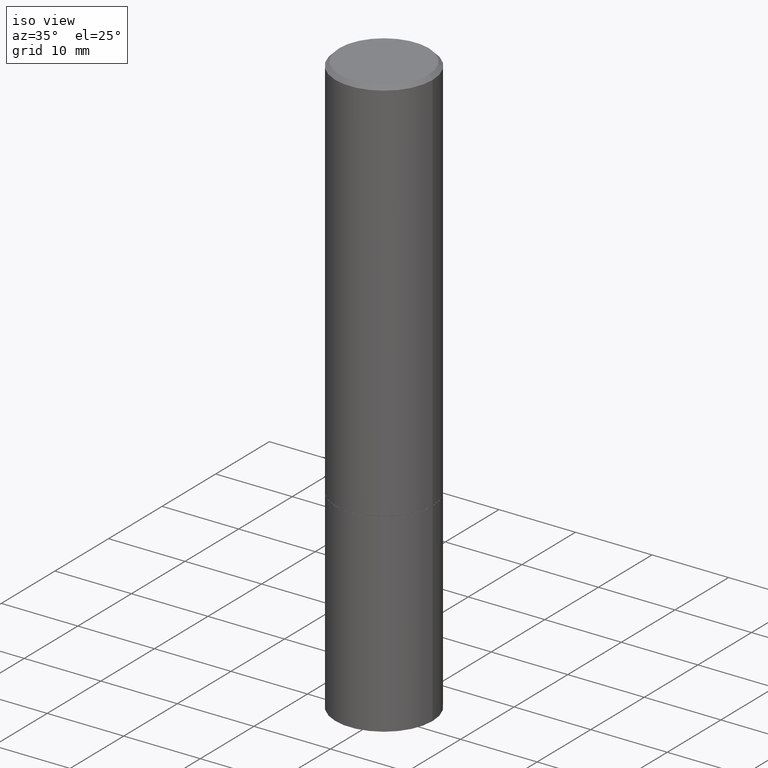
[diagram: clean part render]
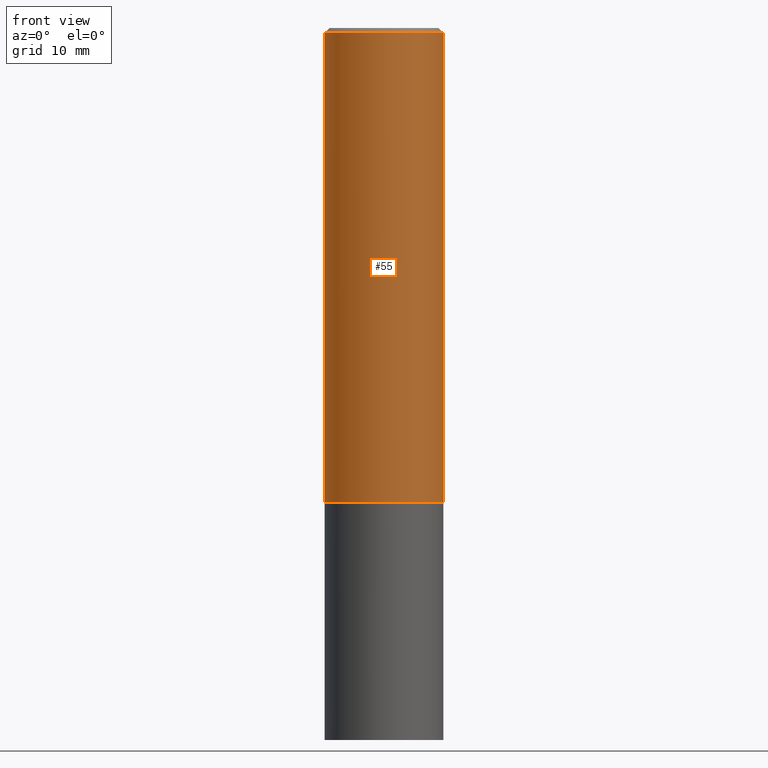
[diagram: tour spotlight — one face highlighted and labeled with its STEP entity id]
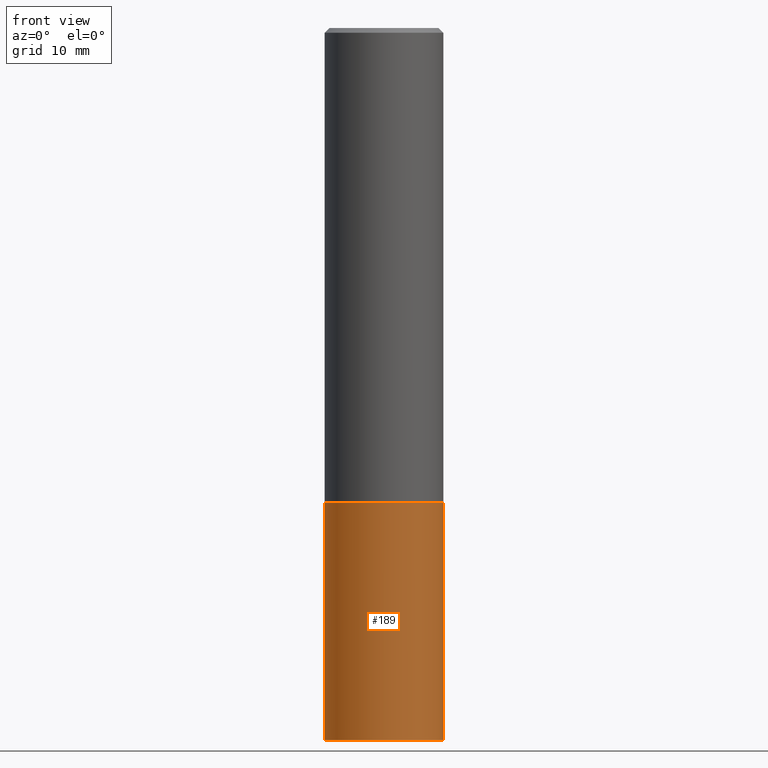
[diagram: tour spotlight — one face highlighted and labeled with its STEP entity id]
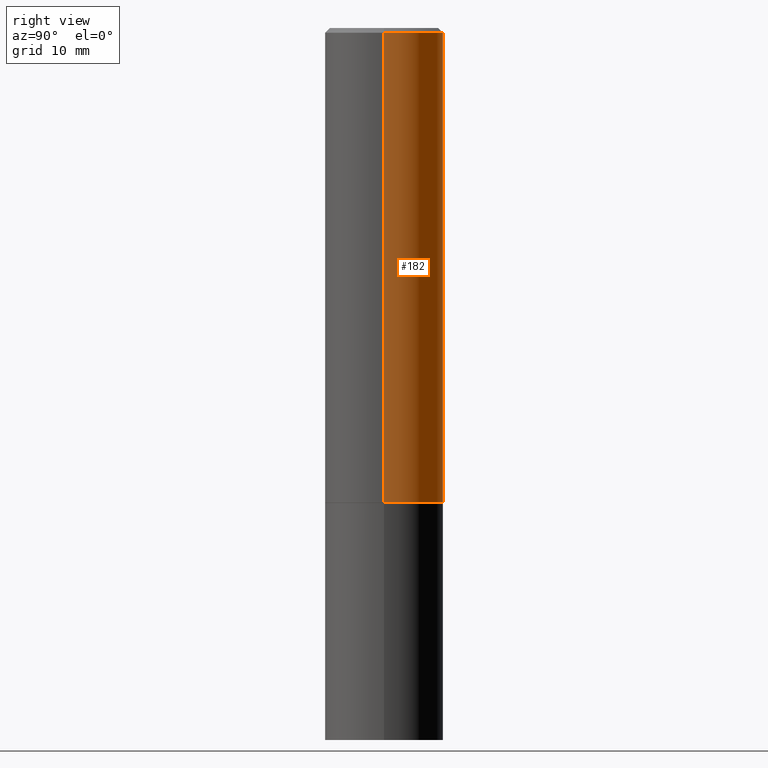
[diagram: tour spotlight — one face highlighted and labeled with its STEP entity id]
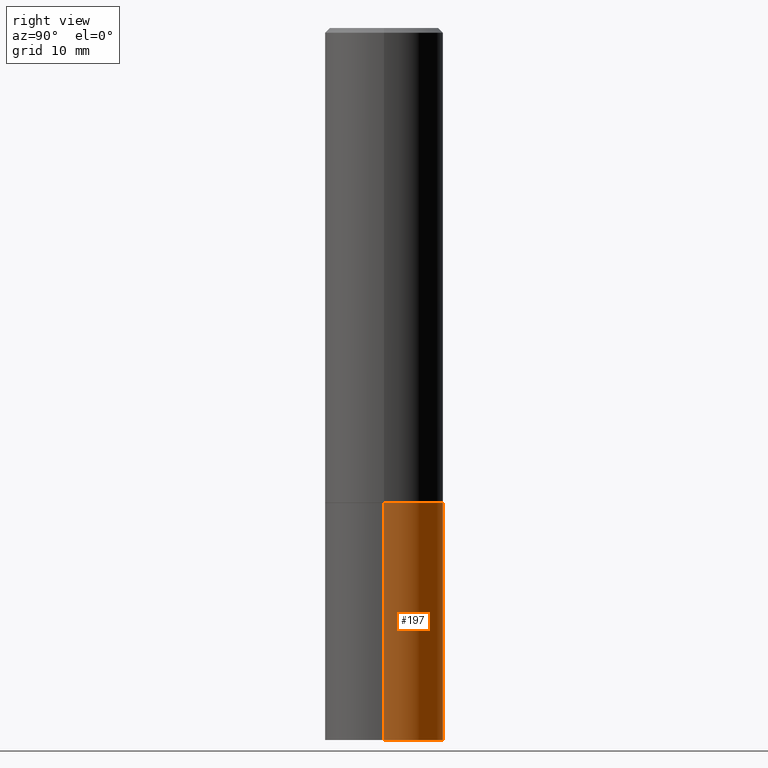
[diagram: tour spotlight — one face highlighted and labeled with its STEP entity id]
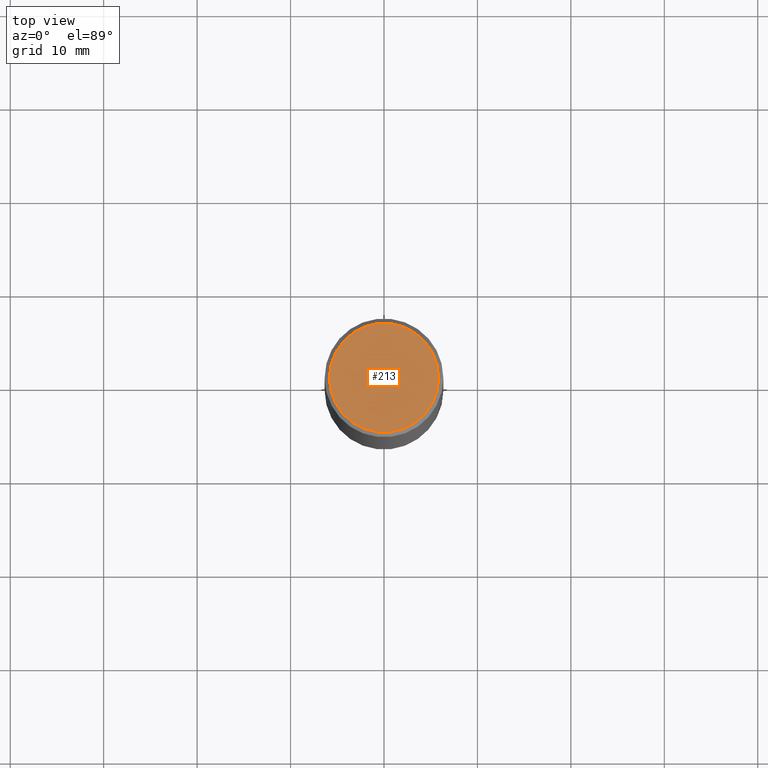
[diagram: tour spotlight — one face highlighted and labeled with its STEP entity id]
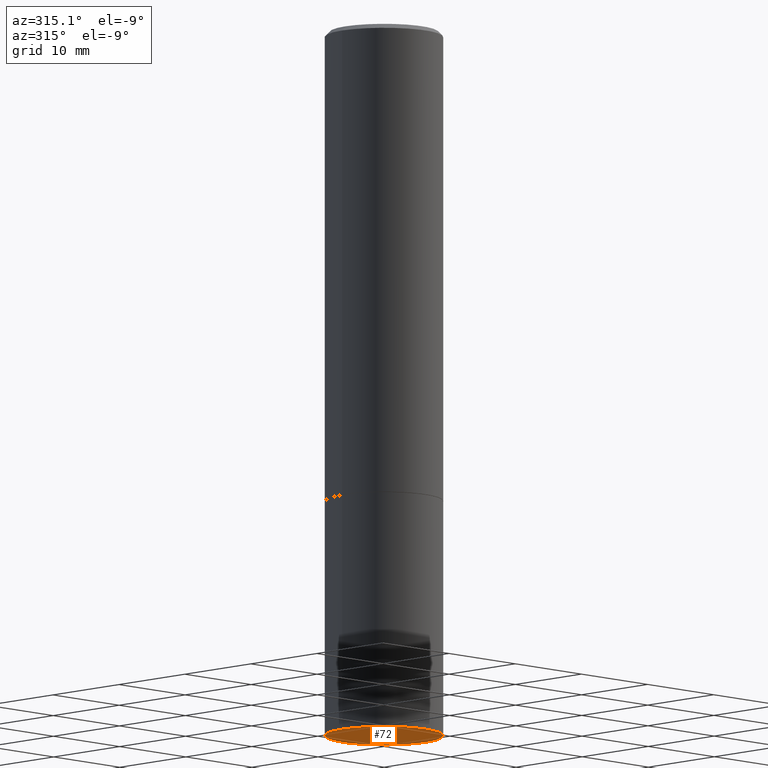
[diagram: tour spotlight — one face highlighted and labeled with its STEP entity id]
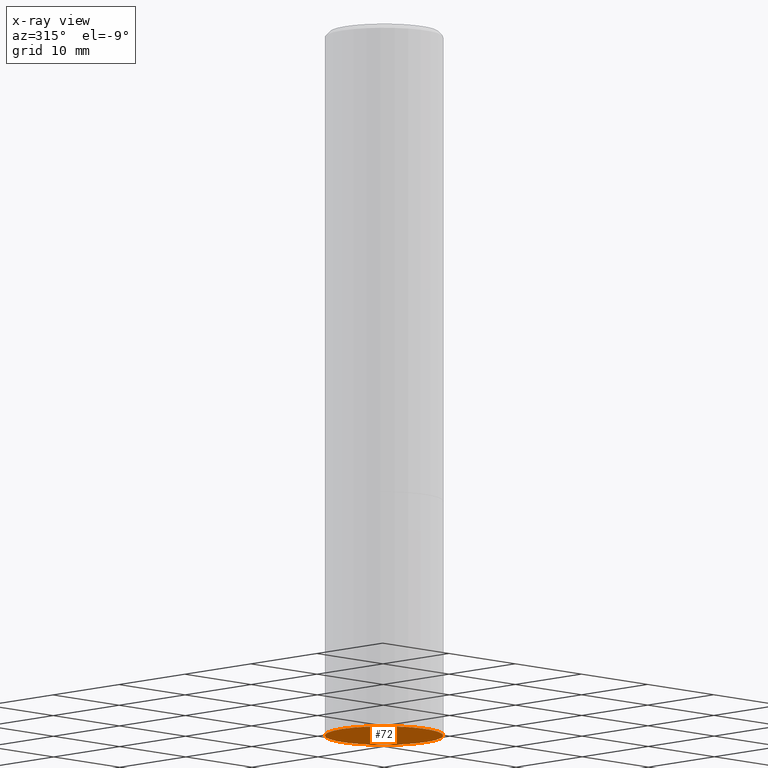
[diagram: x-ray of the same camera — body ghosted, this tour face saturated]
A machine part: a face-by-face anatomy tour. The part has 12 B-rep faces; the first image is the clean iso view, then the 6 largest visible faces are spotlighted one at a time (largest first), each with its STEP entity span.

Face 1 — front view, entity #55. In plain terms, the highlighted cylindrical surface (partial cylindrical patch) has radius 6.35 mm, axis along (-0, 0, 1).
Definition (entity closure, byte-faithful):
#4 = CARTESIAN_POINT ( 'NONE',  ( 0.2500000000000000000, -8.725211865769015625E-15, -1.999000000000000110 ) ) ;
#24 = DIRECTION ( 'NONE',  ( -2.445468806185136597E-29, 3.491481338843145583E-15, 1.000000000000000000 ) ) ;
#39 = CIRCLE ( 'NONE', #323, 0.2500000000000000000 ) ;
#45 = ORIENTED_EDGE ( 'NONE', *, *, #111, .F. ) ;
#55 = ADVANCED_FACE ( 'NONE', ( #79 ), #113, .T. ) ;
#79 = FACE_OUTER_BOUND ( 'NONE', #351, .T. ) ;
#80 = CIRCLE ( 'NONE', #236, 0.2499999999999996947 ) ;
#84 = CARTESIAN_POINT ( 'NONE',  ( 4.890937612370297681E-31, -6.982962677686324889E-17, -0.02000000000000009756 ) ) ;
#104 = ORIENTED_EDGE ( 'NONE', *, *, #121, .T. ) ;
#106 = ORIENTED_EDGE ( 'NONE', *, *, #161, .F. ) ;
#110 = DIRECTION ( 'NONE',  ( -2.445468806185136597E-29, 3.491481338843145583E-15, 1.000000000000000000 ) ) ;
#111 = EDGE_CURVE ( 'NONE', #160, #219, #227, .T. ) ;
#113 = CYLINDRICAL_SURFACE ( 'NONE', #155, 0.2499999999999998612 ) ;
#121 = EDGE_CURVE ( 'NONE', #160, #239, #39, .T. ) ;
#139 = DIRECTION ( 'NONE',  ( -2.445468806185136597E-29, 3.491481338843145583E-15, 1.000000000000000000 ) ) ;
#142 = CARTESIAN_POINT ( 'NONE',  ( -0.2499999999999998612, 1.776356839400249479E-15, -1.229733772563725745E-29 ) ) ;
#143 = CARTESIAN_POINT ( 'NONE',  ( 4.888492143564088712E-29, -6.979471196347448158E-15, -1.999000000000000110 ) ) ;
#144 = CARTESIAN_POINT ( 'NONE',  ( 0.000000000000000000, 0.000000000000000000, 0.000000000000000000 ) ) ;
#153 = CARTESIAN_POINT ( 'NONE',  ( 0.2499999999999998612, -1.745740669421565692E-15, 1.219044193948983248E-29 ) ) ;
#155 = AXIS2_PLACEMENT_3D ( 'NONE', #144, #110, #310 ) ;
#160 = VERTEX_POINT ( 'NONE', #282 ) ;
#161 = EDGE_CURVE ( 'NONE', #219, #169, #80, .T. ) ;
#169 = VERTEX_POINT ( 'NONE', #363 ) ;
#175 = DIRECTION ( 'NONE',  ( -2.445468806185136877E-29, 3.491481338843145188E-15, 1.000000000000000000 ) ) ;
#178 = LINE ( 'NONE', #153, #215 ) ;
#198 = ORIENTED_EDGE ( 'NONE', *, *, #319, .T. ) ;
#208 = DIRECTION ( 'NONE',  ( -2.445468806185136877E-29, 3.491481338843145188E-15, 1.000000000000000000 ) ) ;
#215 = VECTOR ( 'NONE', #208, 39.37007874015748143 ) ;
#219 = VERTEX_POINT ( 'NONE', #290 ) ;
#227 = LINE ( 'NONE', #142, #365 ) ;
#236 = AXIS2_PLACEMENT_3D ( 'NONE', #84, #24, #366 ) ;
#239 = VERTEX_POINT ( 'NONE', #4 ) ;
#282 = CARTESIAN_POINT ( 'NONE',  ( -0.2499999999999999722, -1.748293572161904475E-15, -1.999000000000000110 ) ) ;
#290 = CARTESIAN_POINT ( 'NONE',  ( -0.2499999999999996947, 1.675911042644701210E-15, -0.02000000000000009756 ) ) ;
#305 = DIRECTION ( 'NONE',  ( 1.000000000000000000, -6.982962677686266711E-15, 0.000000000000000000 ) ) ;
#310 = DIRECTION ( 'NONE',  ( 1.000000000000000000, -6.982962677686266711E-15, 4.876176775795935793E-29 ) ) ;
#319 = EDGE_CURVE ( 'NONE', #239, #169, #178, .T. ) ;
#323 = AXIS2_PLACEMENT_3D ( 'NONE', #143, #139, #305 ) ;
#351 = EDGE_LOOP ( 'NONE', ( #45, #104, #198, #106 ) ) ;
#363 = CARTESIAN_POINT ( 'NONE',  ( 0.2499999999999996947, -1.784954126219744217E-15, -0.02000000000000009756 ) ) ;
#365 = VECTOR ( 'NONE', #175, 39.37007874015748143 ) ;
#366 = DIRECTION ( 'NONE',  ( 1.000000000000000000, -6.982962677686266711E-15, 0.000000000000000000 ) ) ;

Face 2 — front view, entity #189. In plain terms, the highlighted cylindrical surface (partial cylindrical patch) has radius 6.35 mm, axis along (-0, 0, 1).
Definition (entity closure, byte-faithful):
#1 = DIRECTION ( 'NONE',  ( 1.000000000000000000, -6.982962677686266711E-15, 4.876176775795935793E-29 ) ) ;
#2 = DIRECTION ( 'NONE',  ( -2.445468806185136877E-29, 3.491481338843145188E-15, 1.000000000000000000 ) ) ;
#31 = CARTESIAN_POINT ( 'NONE',  ( 0.2500000000000000000, -1.222018468595100303E-14, -3.000000000000000444 ) ) ;
#48 = AXIS2_PLACEMENT_3D ( 'NONE', #174, #257, #337 ) ;
#51 = EDGE_LOOP ( 'NONE', ( #100, #300, #354, #188 ) ) ;
#56 = CARTESIAN_POINT ( 'NONE',  ( 4.890937612370273754E-29, -6.982962677686291954E-15, -2.000000000000000444 ) ) ;
#74 = VERTEX_POINT ( 'NONE', #333 ) ;
#77 = EDGE_CURVE ( 'NONE', #331, #302, #164, .T. ) ;
#85 = AXIS2_PLACEMENT_3D ( 'NONE', #56, #171, #335 ) ;
#87 = DIRECTION ( 'NONE',  ( -2.445468806185136597E-29, 3.491481338843145583E-15, 1.000000000000000000 ) ) ;
#96 = AXIS2_PLACEMENT_3D ( 'NONE', #115, #87, #1 ) ;
#100 = ORIENTED_EDGE ( 'NONE', *, *, #210, .F. ) ;
#115 = CARTESIAN_POINT ( 'NONE',  ( 0.000000000000000000, 0.000000000000000000, 0.000000000000000000 ) ) ;
#127 = CARTESIAN_POINT ( 'NONE',  ( 0.2500000000000000000, -1.745740669421566678E-15, 1.219044193948983948E-29 ) ) ;
#141 = EDGE_CURVE ( 'NONE', #74, #270, #256, .T. ) ;
#149 = CARTESIAN_POINT ( 'NONE',  ( -0.2500000000000000000, 1.776356839400250465E-15, -1.229733772563726445E-29 ) ) ;
#151 = CARTESIAN_POINT ( 'NONE',  ( -0.2500000000000000000, -6.952346507707613689E-15, -3.000000000000000444 ) ) ;
#164 = CIRCLE ( 'NONE', #48, 0.2500000000000000000 ) ;
#171 = DIRECTION ( 'NONE',  ( -2.445468806185136597E-29, 3.491481338843145583E-15, 1.000000000000000000 ) ) ;
#174 = CARTESIAN_POINT ( 'NONE',  ( 7.336406418555409790E-29, -1.047444401652943635E-14, -3.000000000000000444 ) ) ;
#183 = CARTESIAN_POINT ( 'NONE',  ( 0.2500000000000000000, -8.728703347107858632E-15, -2.000000000000000444 ) ) ;
#188 = ORIENTED_EDGE ( 'NONE', *, *, #141, .F. ) ;
#189 = ADVANCED_FACE ( 'NONE', ( #283 ), #285, .T. ) ;
#210 = EDGE_CURVE ( 'NONE', #331, #74, #342, .T. ) ;
#256 = CIRCLE ( 'NONE', #85, 0.2500000000000000000 ) ;
#257 = DIRECTION ( 'NONE',  ( -2.445468806185136597E-29, 3.491481338843145583E-15, 1.000000000000000000 ) ) ;
#270 = VERTEX_POINT ( 'NONE', #183 ) ;
#273 = VECTOR ( 'NONE', #2, 39.37007874015748143 ) ;
#275 = EDGE_CURVE ( 'NONE', #302, #270, #340, .T. ) ;
#283 = FACE_OUTER_BOUND ( 'NONE', #51, .T. ) ;
#285 = CYLINDRICAL_SURFACE ( 'NONE', #96, 0.2500000000000000000 ) ;
#293 = DIRECTION ( 'NONE',  ( -2.445468806185136877E-29, 3.491481338843145188E-15, 1.000000000000000000 ) ) ;
#300 = ORIENTED_EDGE ( 'NONE', *, *, #77, .T. ) ;
#302 = VERTEX_POINT ( 'NONE', #31 ) ;
#306 = VECTOR ( 'NONE', #293, 39.37007874015748143 ) ;
#331 = VERTEX_POINT ( 'NONE', #151 ) ;
#333 = CARTESIAN_POINT ( 'NONE',  ( -0.2500000000000000000, -6.952346507707613689E-15, -2.000000000000000444 ) ) ;
#335 = DIRECTION ( 'NONE',  ( 1.000000000000000000, -6.982962677686266711E-15, 0.000000000000000000 ) ) ;
#337 = DIRECTION ( 'NONE',  ( 1.000000000000000000, -6.982962677686262766E-15, 0.000000000000000000 ) ) ;
#340 = LINE ( 'NONE', #127, #273 ) ;
#342 = LINE ( 'NONE', #149, #306 ) ;
#354 = ORIENTED_EDGE ( 'NONE', *, *, #275, .T. ) ;

Face 3 — right view, entity #182. In plain terms, the highlighted cylindrical surface (partial cylindrical patch) has radius 6.35 mm, axis along (-0, 0, 1).
Definition (entity closure, byte-faithful):
#4 = CARTESIAN_POINT ( 'NONE',  ( 0.2500000000000000000, -8.725211865769015625E-15, -1.999000000000000110 ) ) ;
#17 = ORIENTED_EDGE ( 'NONE', *, *, #111, .T. ) ;
#59 = CARTESIAN_POINT ( 'NONE',  ( 4.888492143564088712E-29, -6.979471196347448158E-15, -1.999000000000000110 ) ) ;
#64 = AXIS2_PLACEMENT_3D ( 'NONE', #59, #173, #89 ) ;
#69 = CIRCLE ( 'NONE', #64, 0.2500000000000000000 ) ;
#89 = DIRECTION ( 'NONE',  ( 1.000000000000000000, -6.982962677686266711E-15, 0.000000000000000000 ) ) ;
#109 = AXIS2_PLACEMENT_3D ( 'NONE', #199, #364, #201 ) ;
#111 = EDGE_CURVE ( 'NONE', #160, #219, #227, .T. ) ;
#112 = DIRECTION ( 'NONE',  ( -2.445468806185136597E-29, 3.491481338843145583E-15, 1.000000000000000000 ) ) ;
#118 = EDGE_CURVE ( 'NONE', #169, #219, #126, .T. ) ;
#126 = CIRCLE ( 'NONE', #109, 0.2499999999999996947 ) ;
#135 = ORIENTED_EDGE ( 'NONE', *, *, #185, .T. ) ;
#142 = CARTESIAN_POINT ( 'NONE',  ( -0.2499999999999998612, 1.776356839400249479E-15, -1.229733772563725745E-29 ) ) ;
#153 = CARTESIAN_POINT ( 'NONE',  ( 0.2499999999999998612, -1.745740669421565692E-15, 1.219044193948983248E-29 ) ) ;
#160 = VERTEX_POINT ( 'NONE', #282 ) ;
#169 = VERTEX_POINT ( 'NONE', #363 ) ;
#173 = DIRECTION ( 'NONE',  ( -2.445468806185136597E-29, 3.491481338843145583E-15, 1.000000000000000000 ) ) ;
#175 = DIRECTION ( 'NONE',  ( -2.445468806185136877E-29, 3.491481338843145188E-15, 1.000000000000000000 ) ) ;
#178 = LINE ( 'NONE', #153, #215 ) ;
#182 = ADVANCED_FACE ( 'NONE', ( #203 ), #200, .T. ) ;
#185 = EDGE_CURVE ( 'NONE', #239, #160, #69, .T. ) ;
#199 = CARTESIAN_POINT ( 'NONE',  ( 4.890937612370297681E-31, -6.982962677686324889E-17, -0.02000000000000009756 ) ) ;
#200 = CYLINDRICAL_SURFACE ( 'NONE', #286, 0.2499999999999998612 ) ;
#201 = DIRECTION ( 'NONE',  ( 1.000000000000000000, -6.982962677686266711E-15, 0.000000000000000000 ) ) ;
#203 = FACE_OUTER_BOUND ( 'NONE', #245, .T. ) ;
#208 = DIRECTION ( 'NONE',  ( -2.445468806185136877E-29, 3.491481338843145188E-15, 1.000000000000000000 ) ) ;
#215 = VECTOR ( 'NONE', #208, 39.37007874015748143 ) ;
#219 = VERTEX_POINT ( 'NONE', #290 ) ;
#227 = LINE ( 'NONE', #142, #365 ) ;
#239 = VERTEX_POINT ( 'NONE', #4 ) ;
#245 = EDGE_LOOP ( 'NONE', ( #135, #17, #328, #278 ) ) ;
#278 = ORIENTED_EDGE ( 'NONE', *, *, #319, .F. ) ;
#282 = CARTESIAN_POINT ( 'NONE',  ( -0.2499999999999999722, -1.748293572161904475E-15, -1.999000000000000110 ) ) ;
#286 = AXIS2_PLACEMENT_3D ( 'NONE', #308, #112, #307 ) ;
#290 = CARTESIAN_POINT ( 'NONE',  ( -0.2499999999999996947, 1.675911042644701210E-15, -0.02000000000000009756 ) ) ;
#307 = DIRECTION ( 'NONE',  ( 1.000000000000000000, -6.982962677686266711E-15, 4.876176775795935793E-29 ) ) ;
#308 = CARTESIAN_POINT ( 'NONE',  ( 0.000000000000000000, 0.000000000000000000, 0.000000000000000000 ) ) ;
#319 = EDGE_CURVE ( 'NONE', #239, #169, #178, .T. ) ;
#328 = ORIENTED_EDGE ( 'NONE', *, *, #118, .F. ) ;
#363 = CARTESIAN_POINT ( 'NONE',  ( 0.2499999999999996947, -1.784954126219744217E-15, -0.02000000000000009756 ) ) ;
#364 = DIRECTION ( 'NONE',  ( -2.445468806185136597E-29, 3.491481338843145583E-15, 1.000000000000000000 ) ) ;
#365 = VECTOR ( 'NONE', #175, 39.37007874015748143 ) ;

Face 4 — right view, entity #197. In plain terms, the highlighted cylindrical surface (partial cylindrical patch) has radius 6.35 mm, axis along (-0, 0, 1).
Definition (entity closure, byte-faithful):
#2 = DIRECTION ( 'NONE',  ( -2.445468806185136877E-29, 3.491481338843145188E-15, 1.000000000000000000 ) ) ;
#3 = CIRCLE ( 'NONE', #194, 0.2500000000000000000 ) ;
#8 = ORIENTED_EDGE ( 'NONE', *, *, #275, .F. ) ;
#10 = DIRECTION ( 'NONE',  ( 1.000000000000000000, -6.982962677686262766E-15, 0.000000000000000000 ) ) ;
#11 = DIRECTION ( 'NONE',  ( 1.000000000000000000, -6.982962677686266711E-15, 0.000000000000000000 ) ) ;
#20 = EDGE_CURVE ( 'NONE', #270, #74, #311, .T. ) ;
#21 = DIRECTION ( 'NONE',  ( -2.445468806185136597E-29, 3.491481338843145583E-15, 1.000000000000000000 ) ) ;
#31 = CARTESIAN_POINT ( 'NONE',  ( 0.2500000000000000000, -1.222018468595100303E-14, -3.000000000000000444 ) ) ;
#42 = ORIENTED_EDGE ( 'NONE', *, *, #20, .F. ) ;
#74 = VERTEX_POINT ( 'NONE', #333 ) ;
#107 = DIRECTION ( 'NONE',  ( -2.445468806185136597E-29, 3.491481338843145583E-15, 1.000000000000000000 ) ) ;
#127 = CARTESIAN_POINT ( 'NONE',  ( 0.2500000000000000000, -1.745740669421566678E-15, 1.219044193948983948E-29 ) ) ;
#149 = CARTESIAN_POINT ( 'NONE',  ( -0.2500000000000000000, 1.776356839400250465E-15, -1.229733772563726445E-29 ) ) ;
#151 = CARTESIAN_POINT ( 'NONE',  ( -0.2500000000000000000, -6.952346507707613689E-15, -3.000000000000000444 ) ) ;
#183 = CARTESIAN_POINT ( 'NONE',  ( 0.2500000000000000000, -8.728703347107858632E-15, -2.000000000000000444 ) ) ;
#184 = ORIENTED_EDGE ( 'NONE', *, *, #344, .T. ) ;
#194 = AXIS2_PLACEMENT_3D ( 'NONE', #212, #265, #10 ) ;
#197 = ADVANCED_FACE ( 'NONE', ( #228 ), #312, .T. ) ;
#210 = EDGE_CURVE ( 'NONE', #331, #74, #342, .T. ) ;
#211 = EDGE_LOOP ( 'NONE', ( #184, #221, #42, #8 ) ) ;
#212 = CARTESIAN_POINT ( 'NONE',  ( 7.336406418555409790E-29, -1.047444401652943635E-14, -3.000000000000000444 ) ) ;
#221 = ORIENTED_EDGE ( 'NONE', *, *, #210, .T. ) ;
#228 = FACE_OUTER_BOUND ( 'NONE', #211, .T. ) ;
#230 = AXIS2_PLACEMENT_3D ( 'NONE', #330, #107, #11 ) ;
#265 = DIRECTION ( 'NONE',  ( -2.445468806185136597E-29, 3.491481338843145583E-15, 1.000000000000000000 ) ) ;
#268 = AXIS2_PLACEMENT_3D ( 'NONE', #279, #21, #316 ) ;
#270 = VERTEX_POINT ( 'NONE', #183 ) ;
#273 = VECTOR ( 'NONE', #2, 39.37007874015748143 ) ;
#275 = EDGE_CURVE ( 'NONE', #302, #270, #340, .T. ) ;
#279 = CARTESIAN_POINT ( 'NONE',  ( 0.000000000000000000, 0.000000000000000000, 0.000000000000000000 ) ) ;
#293 = DIRECTION ( 'NONE',  ( -2.445468806185136877E-29, 3.491481338843145188E-15, 1.000000000000000000 ) ) ;
#302 = VERTEX_POINT ( 'NONE', #31 ) ;
#306 = VECTOR ( 'NONE', #293, 39.37007874015748143 ) ;
#311 = CIRCLE ( 'NONE', #230, 0.2500000000000000000 ) ;
#312 = CYLINDRICAL_SURFACE ( 'NONE', #268, 0.2500000000000000000 ) ;
#316 = DIRECTION ( 'NONE',  ( 1.000000000000000000, -6.982962677686266711E-15, 4.876176775795935793E-29 ) ) ;
#330 = CARTESIAN_POINT ( 'NONE',  ( 4.890937612370273754E-29, -6.982962677686291954E-15, -2.000000000000000444 ) ) ;
#331 = VERTEX_POINT ( 'NONE', #151 ) ;
#333 = CARTESIAN_POINT ( 'NONE',  ( -0.2500000000000000000, -6.952346507707613689E-15, -2.000000000000000444 ) ) ;
#340 = LINE ( 'NONE', #127, #273 ) ;
#342 = LINE ( 'NONE', #149, #306 ) ;
#344 = EDGE_CURVE ( 'NONE', #302, #331, #3, .T. ) ;

Face 5 — top view, entity #213. In plain terms, the highlighted planar face has unit normal (0, -0, -1).
Definition (entity closure, byte-faithful):
#27 = CIRCLE ( 'NONE', #294, 0.2299999999999997047 ) ;
#50 = EDGE_CURVE ( 'NONE', #296, #71, #54, .T. ) ;
#52 = ORIENTED_EDGE ( 'NONE', *, *, #50, .T. ) ;
#54 = CIRCLE ( 'NONE', #243, 0.2299999999999997047 ) ;
#60 = DIRECTION ( 'NONE',  ( 2.438088387897960049E-29, -3.491481338843145188E-15, -1.000000000000000000 ) ) ;
#65 = FACE_OUTER_BOUND ( 'NONE', #81, .T. ) ;
#71 = VERTEX_POINT ( 'NONE', #226 ) ;
#76 = CARTESIAN_POINT ( 'NONE',  ( 7.306959900346538153E-46, -1.043240219266313067E-31, -2.987958743070287587E-17 ) ) ;
#81 = EDGE_LOOP ( 'NONE', ( #52, #356 ) ) ;
#91 = AXIS2_PLACEMENT_3D ( 'NONE', #314, #60, #119 ) ;
#119 = DIRECTION ( 'NONE',  ( -1.000000000000000000, 6.982962677686265922E-15, -4.876176775795935793E-29 ) ) ;
#124 = CARTESIAN_POINT ( 'NONE',  ( 7.306959900346538153E-46, -1.043240219266313067E-31, -2.987958743070287587E-17 ) ) ;
#147 = PLANE ( 'NONE',  #91 ) ;
#177 = DIRECTION ( 'NONE',  ( -2.445468806185136597E-29, 3.491481338843145583E-15, 1.000000000000000000 ) ) ;
#193 = DIRECTION ( 'NONE',  ( -2.445468806185136597E-29, 3.491481338843145583E-15, 1.000000000000000000 ) ) ;
#213 = ADVANCED_FACE ( 'NONE', ( #65 ), #147, .F. ) ;
#220 = DIRECTION ( 'NONE',  ( 1.000000000000000000, -6.982962677686266711E-15, 4.875813741439105940E-29 ) ) ;
#226 = CARTESIAN_POINT ( 'NONE',  ( 0.2299999999999997047, -1.681434332853597236E-15, -2.987958743069138192E-17 ) ) ;
#243 = AXIS2_PLACEMENT_3D ( 'NONE', #76, #193, #220 ) ;
#289 = DIRECTION ( 'NONE',  ( 1.000000000000000000, -6.982962677686266711E-15, 4.875813741439105940E-29 ) ) ;
#294 = AXIS2_PLACEMENT_3D ( 'NONE', #124, #177, #289 ) ;
#296 = VERTEX_POINT ( 'NONE', #345 ) ;
#314 = CARTESIAN_POINT ( 'NONE',  ( 1.606081415867839095E-15, 0.2299999999999997047, -8.179805016492739006E-16 ) ) ;
#345 = CARTESIAN_POINT ( 'NONE',  ( -0.2299999999999997047, 1.640996229256270350E-15, -2.987958743071423423E-17 ) ) ;
#356 = ORIENTED_EDGE ( 'NONE', *, *, #360, .T. ) ;
#360 = EDGE_CURVE ( 'NONE', #71, #296, #27, .T. ) ;

Face 6 — auxiliary view, entity #72. An x-ray twin of the same camera follows (body ghosted, this face saturated) — the face is partly hidden behind the body. In plain terms, the highlighted planar face has unit normal (0, -0, -1).
Definition (entity closure, byte-faithful):
#3 = CIRCLE ( 'NONE', #194, 0.2500000000000000000 ) ;
#10 = DIRECTION ( 'NONE',  ( 1.000000000000000000, -6.982962677686262766E-15, 0.000000000000000000 ) ) ;
#29 = CARTESIAN_POINT ( 'NONE',  ( 1.745740669421639647E-15, 0.2499999999999895084, -3.000000000000001332 ) ) ;
#31 = CARTESIAN_POINT ( 'NONE',  ( 0.2500000000000000000, -1.222018468595100303E-14, -3.000000000000000444 ) ) ;
#48 = AXIS2_PLACEMENT_3D ( 'NONE', #174, #257, #337 ) ;
#58 = DIRECTION ( 'NONE',  ( 2.438088387897960049E-29, -3.491481338843145188E-15, -1.000000000000000000 ) ) ;
#72 = ADVANCED_FACE ( 'NONE', ( #222 ), #361, .T. ) ;
#77 = EDGE_CURVE ( 'NONE', #331, #302, #164, .T. ) ;
#132 = ORIENTED_EDGE ( 'NONE', *, *, #344, .F. ) ;
#151 = CARTESIAN_POINT ( 'NONE',  ( -0.2500000000000000000, -6.952346507707613689E-15, -3.000000000000000444 ) ) ;
#164 = CIRCLE ( 'NONE', #48, 0.2500000000000000000 ) ;
#174 = CARTESIAN_POINT ( 'NONE',  ( 7.336406418555409790E-29, -1.047444401652943635E-14, -3.000000000000000444 ) ) ;
#194 = AXIS2_PLACEMENT_3D ( 'NONE', #212, #265, #10 ) ;
#204 = AXIS2_PLACEMENT_3D ( 'NONE', #29, #58, #223 ) ;
#212 = CARTESIAN_POINT ( 'NONE',  ( 7.336406418555409790E-29, -1.047444401652943635E-14, -3.000000000000000444 ) ) ;
#222 = FACE_OUTER_BOUND ( 'NONE', #276, .T. ) ;
#223 = DIRECTION ( 'NONE',  ( -1.000000000000000000, 6.982962677686265922E-15, -4.876176775795935793E-29 ) ) ;
#257 = DIRECTION ( 'NONE',  ( -2.445468806185136597E-29, 3.491481338843145583E-15, 1.000000000000000000 ) ) ;
#265 = DIRECTION ( 'NONE',  ( -2.445468806185136597E-29, 3.491481338843145583E-15, 1.000000000000000000 ) ) ;
#267 = ORIENTED_EDGE ( 'NONE', *, *, #77, .F. ) ;
#276 = EDGE_LOOP ( 'NONE', ( #132, #267 ) ) ;
#302 = VERTEX_POINT ( 'NONE', #31 ) ;
#331 = VERTEX_POINT ( 'NONE', #151 ) ;
#337 = DIRECTION ( 'NONE',  ( 1.000000000000000000, -6.982962677686262766E-15, 0.000000000000000000 ) ) ;
#344 = EDGE_CURVE ( 'NONE', #302, #331, #3, .T. ) ;
#361 = PLANE ( 'NONE',  #204 ) ;